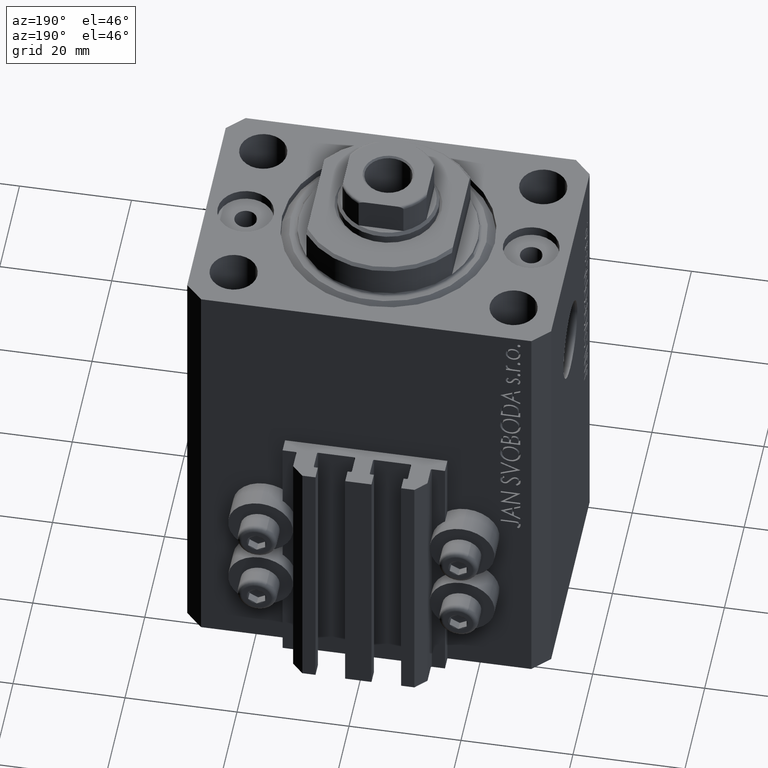
[diagram: clean part render]
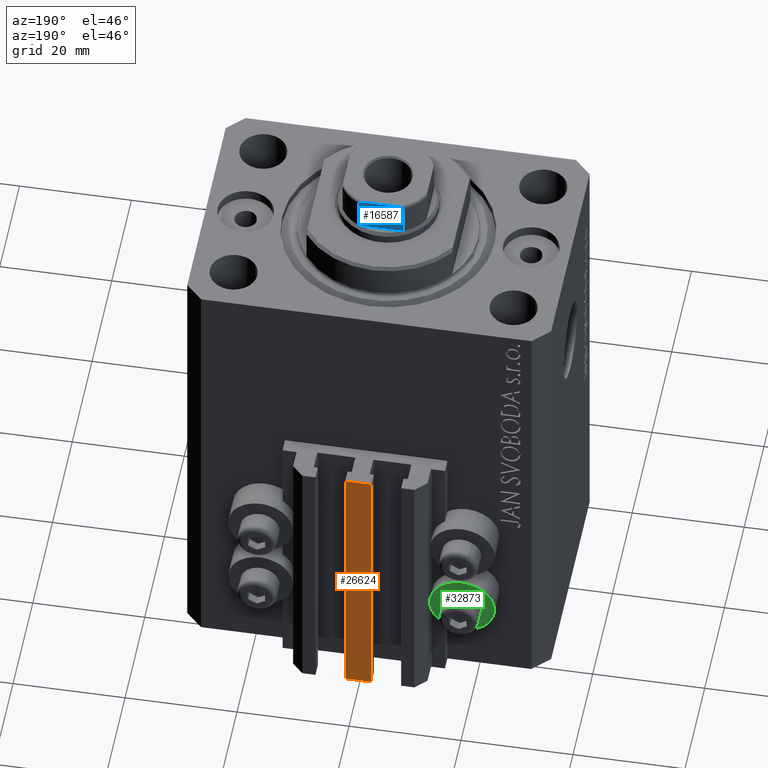
[diagram: same view with three faces highlighted in distinct colors, each labeled with its STEP entity id]
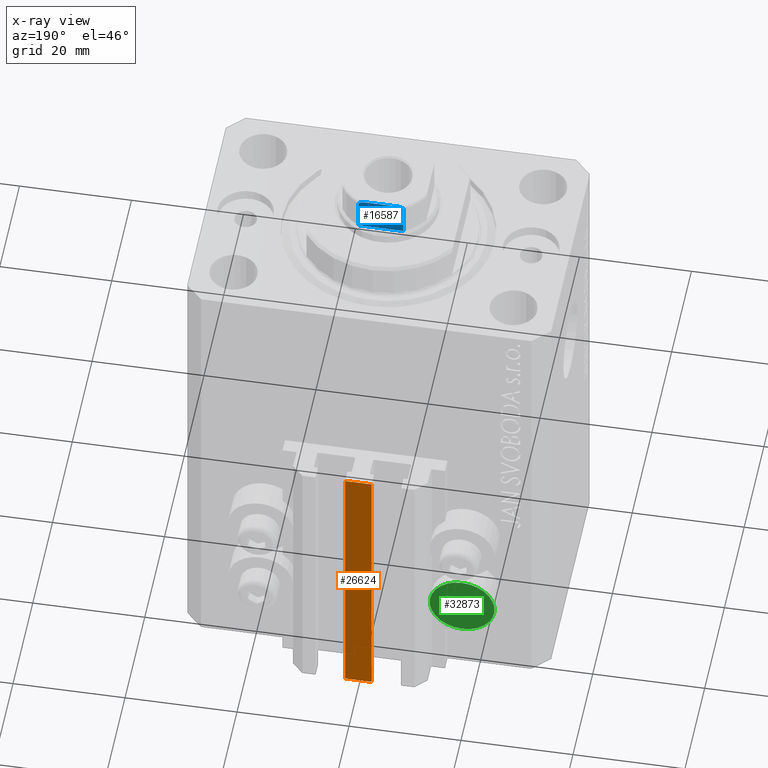
[diagram: x-ray of the same camera — body ghosted, the three highlighted faces saturated]
A machine part, auxiliary view with three faces highlighted in distinct colors.
The next image is the same camera in x-ray (body ghosted, the three faces saturated) — at least one of them is partly hidden behind the body in this view.
Their STEP definitions:

[orange] entity #26624 — the highlighted planar face has unit normal (0, -1, 0).
#143 = ORIENTED_EDGE ( 'NONE', *, *, #32945, .F. ) ;
#370 = CARTESIAN_POINT ( 'NONE',  ( -2.350000000000003197, 30.49999999999949907, -83.00000000000000000 ) ) ;
#932 = VERTEX_POINT ( 'NONE', #30716 ) ;
#1203 = ORIENTED_EDGE ( 'NONE', *, *, #1932, .T. ) ;
#1932 = EDGE_CURVE ( 'NONE', #41473, #932, #18746, .T. ) ;
#3682 = CARTESIAN_POINT ( 'NONE',  ( 2.349999999999999645, 30.49999999999949907, -33.00000000000000000 ) ) ;
#3684 = LINE ( 'NONE', #15606, #25681 ) ;
#5792 = AXIS2_PLACEMENT_3D ( 'NONE', #24110, #47166, #38652 ) ;
#6866 = VERTEX_POINT ( 'NONE', #3682 ) ;
#8379 = ORIENTED_EDGE ( 'NONE', *, *, #31402, .F. ) ;
#11600 = DIRECTION ( 'NONE',  ( 0.000000000000000000, 0.000000000000000000, 1.000000000000000000 ) ) ;
#14952 = EDGE_LOOP ( 'NONE', ( #35786, #143, #8379, #1203 ) ) ;
#15156 = CARTESIAN_POINT ( 'NONE',  ( -2.350000000000003197, 30.49999999999949907, -83.00000000000000000 ) ) ;
#15377 = DIRECTION ( 'NONE',  ( 0.000000000000000000, 0.000000000000000000, 1.000000000000000000 ) ) ;
#15606 = CARTESIAN_POINT ( 'NONE',  ( 2.349999999999999645, 30.49999999999949907, -83.00000000000000000 ) ) ;
#18746 = LINE ( 'NONE', #370, #41123 ) ;
#23328 = LINE ( 'NONE', #42404, #42691 ) ;
#24110 = CARTESIAN_POINT ( 'NONE',  ( -2.350000000000003197, 30.49999999999949907, -83.00000000000000000 ) ) ;
#24273 = LINE ( 'NONE', #32372, #38512 ) ;
#25681 = VECTOR ( 'NONE', #15377, 1000.000000000000000 ) ;
#25754 = EDGE_CURVE ( 'NONE', #932, #6866, #24273, .T. ) ;
#26624 = ADVANCED_FACE ( 'NONE', ( #40001 ), #31506, .F. ) ;
#30716 = CARTESIAN_POINT ( 'NONE',  ( -2.350000000000003197, 30.49999999999949907, -33.00000000000000000 ) ) ;
#31402 = EDGE_CURVE ( 'NONE', #41473, #33041, #23328, .T. ) ;
#31506 = PLANE ( 'NONE',  #5792 ) ;
#32372 = CARTESIAN_POINT ( 'NONE',  ( -2.350000000000003197, 30.49999999999949907, -33.00000000000000000 ) ) ;
#32945 = EDGE_CURVE ( 'NONE', #33041, #6866, #3684, .T. ) ;
#33041 = VERTEX_POINT ( 'NONE', #45651 ) ;
#34296 = DIRECTION ( 'NONE',  ( 1.000000000000000000, 0.000000000000000000, 0.000000000000000000 ) ) ;
#35241 = DIRECTION ( 'NONE',  ( 1.000000000000000000, 0.000000000000000000, 0.000000000000000000 ) ) ;
#35786 = ORIENTED_EDGE ( 'NONE', *, *, #25754, .T. ) ;
#38512 = VECTOR ( 'NONE', #35241, 1000.000000000000000 ) ;
#38652 = DIRECTION ( 'NONE',  ( 0.000000000000000000, -0.000000000000000000, -1.000000000000000000 ) ) ;
#40001 = FACE_OUTER_BOUND ( 'NONE', #14952, .T. ) ;
#41123 = VECTOR ( 'NONE', #11600, 1000.000000000000000 ) ;
#41473 = VERTEX_POINT ( 'NONE', #15156 ) ;
#42404 = CARTESIAN_POINT ( 'NONE',  ( -2.350000000000003197, 30.49999999999949907, -83.00000000000000000 ) ) ;
#42691 = VECTOR ( 'NONE', #34296, 1000.000000000000000 ) ;
#45651 = CARTESIAN_POINT ( 'NONE',  ( 2.349999999999999645, 30.49999999999949907, -83.00000000000000000 ) ) ;
#47166 = DIRECTION ( 'NONE',  ( 0.000000000000000000, -1.000000000000000000, 0.000000000000000000 ) ) ;

[blue] entity #16587 — the highlighted planar face has unit normal (0, -1, 0).
#127 = CARTESIAN_POINT ( 'NONE',  ( -2.783882181415013868, 7.499999999999999112, 90.10000000000000853 ) ) ;
#3008 = CARTESIAN_POINT ( 'NONE',  ( -3.858352854028597623, 7.499999999999999112, 89.85117951603156428 ) ) ;
#6251 = PLANE ( 'NONE',  #27084 ) ;
#6323 = VERTEX_POINT ( 'NONE', #39580 ) ;
#7160 = CARTESIAN_POINT ( 'NONE',  ( 3.904072061442345198, 7.500000000000001776, 89.81287056890811016 ) ) ;
#7482 = EDGE_CURVE ( 'NONE', #15827, #41408, #28819, .T. ) ;
#7631 = CARTESIAN_POINT ( 'NONE',  ( 3.857502111569846459, 7.500000000000004441, 89.85173359969215312 ) ) ;
#8354 = B_SPLINE_CURVE_WITH_KNOTS ( 'NONE', 3,
 ( #14215, #39973, #43799, #47142, #3008, #36397, #21840, #11114, #46676, #127 ),
 .UNSPECIFIED., .F., .F.,
 ( 4, 2, 2, 2, 4 ),
 ( 0.000000000000000000, 0.0001779688448868754422, 0.0003559376897737516975, 0.0007118753795475258380, 0.001423750759095075312 ),
 .UNSPECIFIED. ) ;
#8762 = DIRECTION ( 'NONE',  ( -1.000000000000000000, -5.782411586589357392E-17, -0.000000000000000000 ) ) ;
#9945 = VECTOR ( 'NONE', #8762, 1000.000000000000000 ) ;
#10966 = CARTESIAN_POINT ( 'NONE',  ( 4.000000000000211386, 7.500000000000000000, 89.66034186205210688 ) ) ;
#11114 = CARTESIAN_POINT ( 'NONE',  ( -3.254991323038179729, 7.499999999999999112, 90.08269028443154980 ) ) ;
#11466 = EDGE_CURVE ( 'NONE', #15827, #6323, #37034, .T. ) ;
#11629 = CARTESIAN_POINT ( 'NONE',  ( 4.000000000000001776, 7.500000000000000000, -0.001000000000001000089 ) ) ;
#11696 = ORIENTED_EDGE ( 'NONE', *, *, #7482, .F. ) ;
#13483 = CARTESIAN_POINT ( 'NONE',  ( 2.783882181415012980, 7.500000000000000000, 90.10000000000000853 ) ) ;
#14215 = CARTESIAN_POINT ( 'NONE',  ( -4.000000000000000888, 7.500000000000000000, 89.60000000000000853 ) ) ;
#14540 = CARTESIAN_POINT ( 'NONE',  ( 3.975735230428943279, 7.500000000000000000, 89.71773041319781328 ) ) ;
#15827 = VERTEX_POINT ( 'NONE', #19731 ) ;
#15879 = EDGE_CURVE ( 'NONE', #41688, #37525, #8354, .T. ) ;
#16587 = ADVANCED_FACE ( 'NONE', ( #21496 ), #6251, .F. ) ;
#17210 = CARTESIAN_POINT ( 'NONE',  ( -7.499999999999998224, 7.499999999999999112, 90.10000000000000853 ) ) ;
#18482 = ORIENTED_EDGE ( 'NONE', *, *, #41303, .F. ) ;
#19731 = CARTESIAN_POINT ( 'NONE',  ( 4.000000000000001776, 7.500000000000000000, 84.09999999999999432 ) ) ;
#20795 = DIRECTION ( 'NONE',  ( 5.782411586589357392E-17, -1.000000000000000000, 0.000000000000000000 ) ) ;
#21374 = VECTOR ( 'NONE', #26218, 1000.000000000000000 ) ;
#21496 = FACE_OUTER_BOUND ( 'NONE', #24468, .T. ) ;
#21600 = CARTESIAN_POINT ( 'NONE',  ( 4.000000000000001776, 7.500000000000000000, 89.60000000000000853 ) ) ;
#21840 = CARTESIAN_POINT ( 'NONE',  ( -3.597188386589929454, 7.500000000000000888, 89.99052843393241119 ) ) ;
#21846 = EDGE_CURVE ( 'NONE', #32869, #41408, #26159, .T. ) ;
#22261 = VECTOR ( 'NONE', #40485, 1000.000000000000000 ) ;
#23544 = LINE ( 'NONE', #26425, #9945 ) ;
#24468 = EDGE_LOOP ( 'NONE', ( #18482, #26651, #11696, #26178, #40164, #38689 ) ) ;
#24814 = CARTESIAN_POINT ( 'NONE',  ( 3.598393151503780363, 7.499999999999999112, 89.99012191927410242 ) ) ;
#25050 = CARTESIAN_POINT ( 'NONE',  ( 4.000000000000001776, 7.500000000000000000, 89.60000000000000853 ) ) ;
#25286 = CARTESIAN_POINT ( 'NONE',  ( 3.255843148148206190, 7.500000000000001776, 90.08262378726874431 ) ) ;
#25353 = CARTESIAN_POINT ( 'NONE',  ( -7.499999999999998224, 7.499999999999999112, 84.10000000000000853 ) ) ;
#26159 = B_SPLINE_CURVE_WITH_KNOTS ( 'NONE', 3,
 ( #29110, #39823, #25286, #24814, #43654, #7631, #7160, #14540, #10966, #25050 ),
 .UNSPECIFIED., .F., .F.,
 ( 4, 2, 2, 2, 4 ),
 ( 4.336808689942017736E-19, 0.0007049202178654017650, 0.001057380326798107797, 0.001233610381264460759, 0.001409840435730813721 ),
 .UNSPECIFIED. ) ;
#26178 = ORIENTED_EDGE ( 'NONE', *, *, #11466, .T. ) ;
#26218 = DIRECTION ( 'NONE',  ( -0.000000000000000000, -0.000000000000000000, 1.000000000000000000 ) ) ;
#26425 = CARTESIAN_POINT ( 'NONE',  ( -7.499999999999998224, 7.499999999999999112, 90.10000000000000853 ) ) ;
#26651 = ORIENTED_EDGE ( 'NONE', *, *, #21846, .T. ) ;
#27084 = AXIS2_PLACEMENT_3D ( 'NONE', #17210, #20795, #35347 ) ;
#28819 = LINE ( 'NONE', #11629, #22261 ) ;
#29110 = CARTESIAN_POINT ( 'NONE',  ( 2.783882181415012980, 7.500000000000000000, 90.10000000000000853 ) ) ;
#29378 = CARTESIAN_POINT ( 'NONE',  ( -2.783882181415013868, 7.499999999999999112, 90.10000000000000853 ) ) ;
#29794 = CARTESIAN_POINT ( 'NONE',  ( -4.000000000000000888, 7.500000000000000000, -0.001000000000001000089 ) ) ;
#32869 = VERTEX_POINT ( 'NONE', #13483 ) ;
#35347 = DIRECTION ( 'NONE',  ( 1.000000000000000000, 5.782411586589357392E-17, 0.000000000000000000 ) ) ;
#36397 = CARTESIAN_POINT ( 'NONE',  ( -3.708875323752956810, 7.499999999999997335, 89.94930352055463629 ) ) ;
#37034 = LINE ( 'NONE', #25353, #42155 ) ;
#37525 = VERTEX_POINT ( 'NONE', #29378 ) ;
#38689 = ORIENTED_EDGE ( 'NONE', *, *, #15879, .T. ) ;
#39580 = CARTESIAN_POINT ( 'NONE',  ( -3.999999999999998224, 7.500000000000000000, 84.09999999999999432 ) ) ;
#39823 = CARTESIAN_POINT ( 'NONE',  ( 3.020030562295405119, 7.500000000000000000, 90.10000000000005116 ) ) ;
#39892 = DIRECTION ( 'NONE',  ( -1.000000000000000000, -5.782411586589357392E-17, -0.000000000000000000 ) ) ;
#39973 = CARTESIAN_POINT ( 'NONE',  ( -4.000000000000000888, 7.500000000000001776, 89.66026396800441489 ) ) ;
#40042 = LINE ( 'NONE', #29794, #21374 ) ;
#40164 = ORIENTED_EDGE ( 'NONE', *, *, #42016, .T. ) ;
#40485 = DIRECTION ( 'NONE',  ( -0.000000000000000000, -0.000000000000000000, 1.000000000000000000 ) ) ;
#41303 = EDGE_CURVE ( 'NONE', #32869, #37525, #23544, .T. ) ;
#41408 = VERTEX_POINT ( 'NONE', #21600 ) ;
#41688 = VERTEX_POINT ( 'NONE', #47088 ) ;
#42016 = EDGE_CURVE ( 'NONE', #6323, #41688, #40042, .T. ) ;
#42155 = VECTOR ( 'NONE', #39892, 1000.000000000000000 ) ;
#43654 = CARTESIAN_POINT ( 'NONE',  ( 3.710689790367155627, 7.500000000000000000, 89.94812118173426541 ) ) ;
#43799 = CARTESIAN_POINT ( 'NONE',  ( -3.976018255615928254, 7.499999999999998224, 89.71726199300996996 ) ) ;
#46676 = CARTESIAN_POINT ( 'NONE',  ( -3.020011215871897914, 7.500000000000000000, 90.10000000000000853 ) ) ;
#47088 = CARTESIAN_POINT ( 'NONE',  ( -4.000000000000000888, 7.500000000000000000, 89.60000000000000853 ) ) ;
#47142 = CARTESIAN_POINT ( 'NONE',  ( -3.904208668232357127, 7.500000000000000888, 89.81278134537500080 ) ) ;

[green] entity #32873 — the highlighted planar face has unit normal (0, -1, 0).
#2623 = CIRCLE ( 'NONE', #23233, 2.000000000000001776 ) ;
#3799 = EDGE_CURVE ( 'NONE', #36306, #40662, #5369, .T. ) ;
#5020 = DIRECTION ( 'NONE',  ( 0.000000000000000000, 0.000000000000000000, -1.000000000000000000 ) ) ;
#5369 = CIRCLE ( 'NONE', #18328, 2.000000000000001776 ) ;
#6883 = CARTESIAN_POINT ( 'NONE',  ( -18.00000000000000355, 27.49999999996051514, -69.79999999999999716 ) ) ;
#7120 = CARTESIAN_POINT ( 'NONE',  ( -18.00000000000000355, 27.49999999996051514, -64.00000000000000000 ) ) ;
#10687 = DIRECTION ( 'NONE',  ( -0.000000000000000000, -1.000000000000000000, -0.000000000000000000 ) ) ;
#12480 = DIRECTION ( 'NONE',  ( -0.000000000000000000, -1.000000000000000000, -0.000000000000000000 ) ) ;
#12794 = ORIENTED_EDGE ( 'NONE', *, *, #30770, .F. ) ;
#13563 = CIRCLE ( 'NONE', #28835, 5.799999999999999822 ) ;
#13714 = FACE_BOUND ( 'NONE', #36978, .T. ) ;
#13792 = DIRECTION ( 'NONE',  ( 0.000000000000000000, 0.000000000000000000, -1.000000000000000000 ) ) ;
#16900 = EDGE_LOOP ( 'NONE', ( #12794, #30033 ) ) ;
#18328 = AXIS2_PLACEMENT_3D ( 'NONE', #7120, #10687, #13792 ) ;
#18837 = AXIS2_PLACEMENT_3D ( 'NONE', #28283, #42826, #47111 ) ;
#20039 = CARTESIAN_POINT ( 'NONE',  ( -18.00000000000000355, 27.49999999996051514, -64.00000000000000000 ) ) ;
#20870 = PLANE ( 'NONE',  #18837 ) ;
#23059 = VERTEX_POINT ( 'NONE', #38218 ) ;
#23233 = AXIS2_PLACEMENT_3D ( 'NONE', #20039, #34589, #5020 ) ;
#24225 = EDGE_CURVE ( 'NONE', #40662, #36306, #2623, .T. ) ;
#28283 = CARTESIAN_POINT ( 'NONE',  ( -12.20000000000000284, 27.49999999996051514, -64.00000000000000000 ) ) ;
#28835 = AXIS2_PLACEMENT_3D ( 'NONE', #33476, #33714, #40639 ) ;
#29377 = VERTEX_POINT ( 'NONE', #6883 ) ;
#29410 = CARTESIAN_POINT ( 'NONE',  ( -18.00000000000000355, 27.49999999996051514, -62.00000000000000000 ) ) ;
#30033 = ORIENTED_EDGE ( 'NONE', *, *, #42541, .F. ) ;
#30365 = CARTESIAN_POINT ( 'NONE',  ( -18.00000000000000355, 27.49999999996051514, -66.00000000000000000 ) ) ;
#30770 = EDGE_CURVE ( 'NONE', #29377, #23059, #13563, .T. ) ;
#31690 = ORIENTED_EDGE ( 'NONE', *, *, #24225, .T. ) ;
#32045 = AXIS2_PLACEMENT_3D ( 'NONE', #41105, #12480, #34181 ) ;
#32873 = ADVANCED_FACE ( 'NONE', ( #13714, #35663 ), #20870, .F. ) ;
#33476 = CARTESIAN_POINT ( 'NONE',  ( -18.00000000000000355, 27.49999999996051514, -64.00000000000000000 ) ) ;
#33714 = DIRECTION ( 'NONE',  ( -0.000000000000000000, -1.000000000000000000, -0.000000000000000000 ) ) ;
#34181 = DIRECTION ( 'NONE',  ( 0.000000000000000000, 0.000000000000000000, -1.000000000000000000 ) ) ;
#34589 = DIRECTION ( 'NONE',  ( -0.000000000000000000, -1.000000000000000000, -0.000000000000000000 ) ) ;
#35663 = FACE_OUTER_BOUND ( 'NONE', #16900, .T. ) ;
#36306 = VERTEX_POINT ( 'NONE', #30365 ) ;
#36978 = EDGE_LOOP ( 'NONE', ( #31690, #38246 ) ) ;
#38218 = CARTESIAN_POINT ( 'NONE',  ( -18.00000000000000355, 27.49999999996051514, -58.20000000000000284 ) ) ;
#38246 = ORIENTED_EDGE ( 'NONE', *, *, #3799, .T. ) ;
#40639 = DIRECTION ( 'NONE',  ( 0.000000000000000000, 0.000000000000000000, -1.000000000000000000 ) ) ;
#40662 = VERTEX_POINT ( 'NONE', #29410 ) ;
#41105 = CARTESIAN_POINT ( 'NONE',  ( -18.00000000000000355, 27.49999999996051514, -64.00000000000000000 ) ) ;
#42541 = EDGE_CURVE ( 'NONE', #23059, #29377, #45026, .T. ) ;
#42826 = DIRECTION ( 'NONE',  ( 0.000000000000000000, -1.000000000000000000, 0.000000000000000000 ) ) ;
#45026 = CIRCLE ( 'NONE', #32045, 5.799999999999999822 ) ;
#47111 = DIRECTION ( 'NONE',  ( 0.000000000000000000, 0.000000000000000000, 1.000000000000000000 ) ) ;